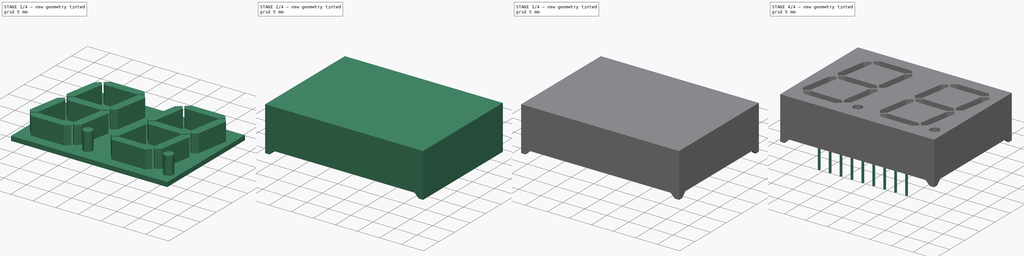
[diagram: build sequence overview — one tinted view per stage of 4, left to right]
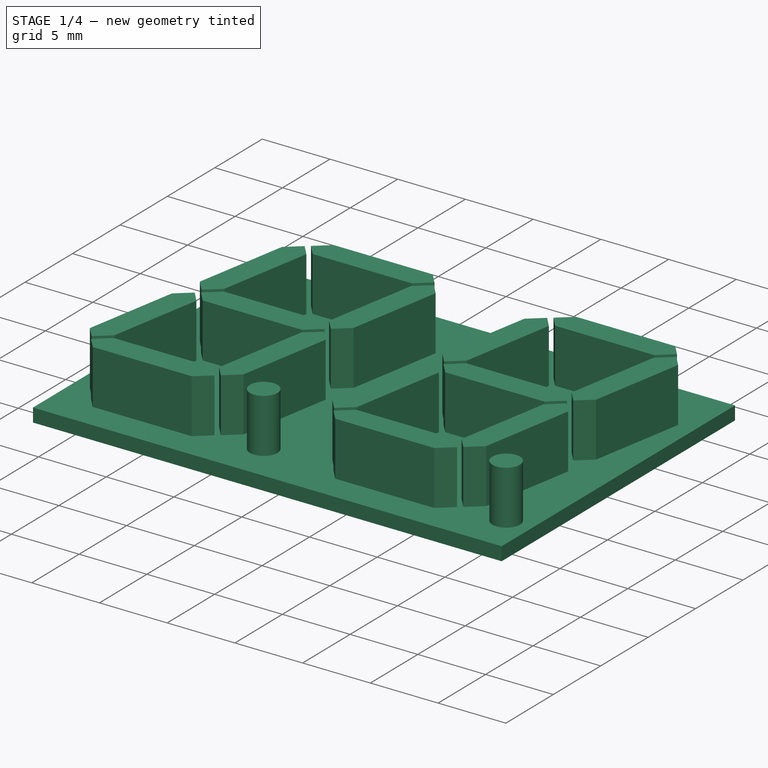
[diagram: stage 1 of 4 — iso view after this stage's code; geometry added in this stage tinted green]
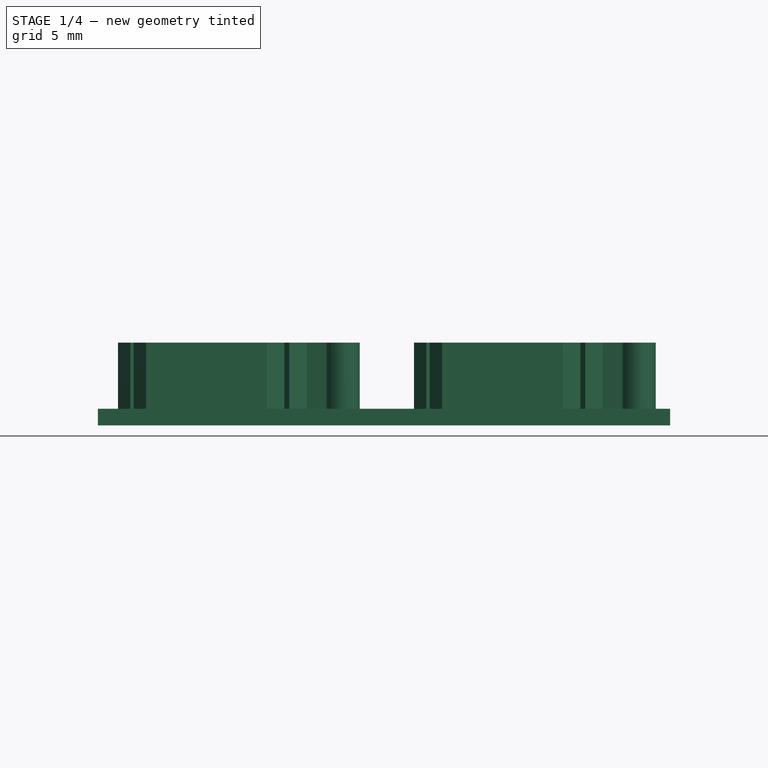
[diagram: stage 1 of 4 — front view after this stage's code; geometry added in this stage tinted green]
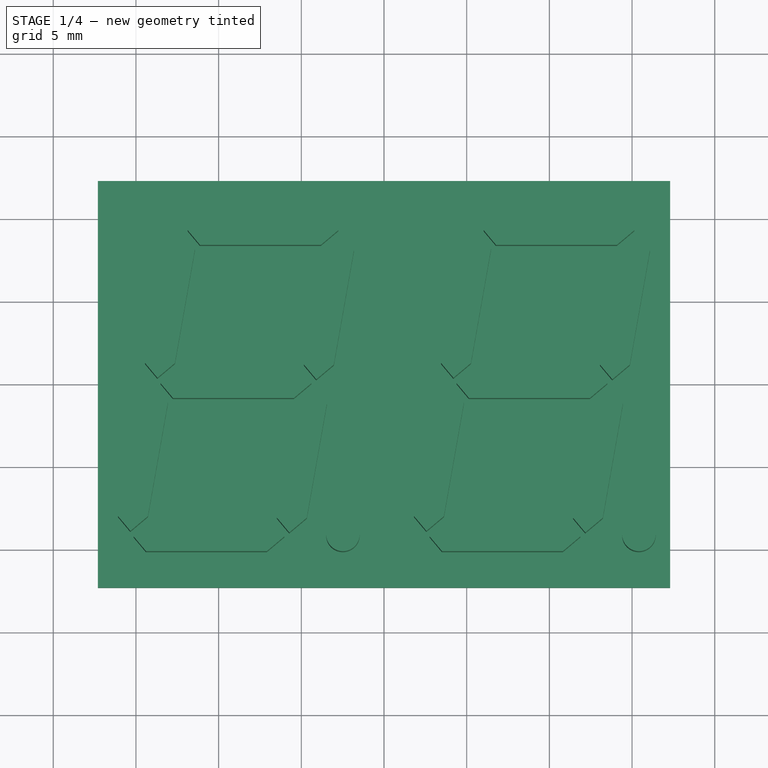
[diagram: stage 1 of 4 — top view after this stage's code; geometry added in this stage tinted green]
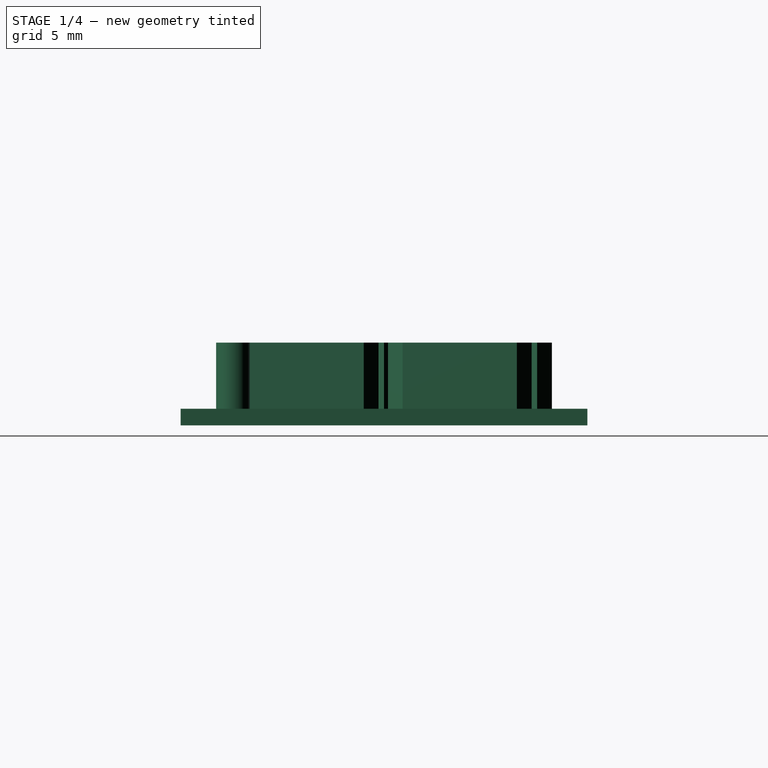
[diagram: stage 1 of 4 — right view after this stage's code; geometry added in this stage tinted green]
FCSTD DOCUMENT  (FreeCAD 1.0R38641 +468 (Git))
Label: LDD-A814RI
License: All rights reserved
LicenseURL: http://en.wikipedia.org/wiki/All_rights_reserved
objects: Sketcher::SketchObject×7, PartDesign::Pad×4, PartDesign::Body×3, PartDesign::Pocket×3, Part::FeaturePython×2, Spreadsheet::Sheet×1, PartDesign::LinearPattern×1, Part::Cut×1
note: 42 computed .brp shape members not serialized (recipe doc carries the construction recipe); baked Part::Feature solids carry a one-line shape summary decoded from their .brp

FEATURE [Sketcher::SketchObject] Sketch
  ArcFitTolerance = 0
  AttachmentSupport = -> [XY_Plane001]
  FullyConstrained = true
  MakeInternals = false
  MapMode = 5
  expr: Constraints[10] = <<Param>>.pkgw - <<Param>>.pkgedge * 2
  expr: Constraints[9] = <<Param>>.pkgl - <<Param>>.pkgedge * 2
  sketch-geometry (4):
    g0: LineSegment StartX=-17.3 StartY=12.3 StartZ=0 EndX=17.3 EndY=12.3 EndZ=0
    g1: LineSegment StartX=17.3 StartY=12.3 StartZ=0 EndX=17.3 EndY=-12.3 EndZ=0
    g2: LineSegment StartX=17.3 StartY=-12.3 StartZ=0 EndX=-17.3 EndY=-12.3 EndZ=0
    g3: LineSegment StartX=-17.3 StartY=-12.3 StartZ=0 EndX=-17.3 EndY=12.3 EndZ=0
  constraints (11):
    c: Coincident(g0,g1)
    c: Coincident(g1,g2)
    c: Coincident(g2,g3)
    c: Coincident(g3,g0)
    c: Horizontal(g0)
    c: Horizontal(g2)
    c: Vertical(g1)
    c: Vertical(g3)
    c: Symmetric(g2,g0,g-1)
    c: DistanceX(g0,g0) = 34.6
    c: DistanceY(g1,g1) = 24.6
FEATURE [PartDesign::Pad] Pad001
  Direction = (0,0,1)
  Length = 1
  Length2 = 10
  Profile = -> Sketch
  ReferenceAxis = -> Sketch [N_Axis]
  Suppressed = false
  Type = 0
FEATURE [Sketcher::SketchObject] Sketch002
  ArcFitTolerance = 0
  AttachmentSupport = -> [XY_Plane001]
  FullyConstrained = true
  MakeInternals = false
  MapMode = 5
  sketch-geometry (90):
    g0: LineSegment StartX=-11.8753 StartY=9.261 StartZ=0 EndX=-10.8159 EndY=10.15 EndZ=0
    g1: LineSegment StartX=-10.8159 StartY=10.15 StartZ=0 EndX=-3.50471 EndY=10.15 EndZ=0
    g2: LineSegment StartX=-3.50471 StartY=10.15 StartZ=0 EndX=-2.75875 EndY=9.261 EndZ=0
    g3: LineSegment StartX=-2.75875 StartY=9.261 StartZ=0 EndX=-3.81822 EndY=8.372 EndZ=0
    g4: LineSegment StartX=-3.81822 StartY=8.372 StartZ=0 EndX=-11.1294 EndY=8.372 EndZ=0
    g5: LineSegment StartX=-11.1294 StartY=8.372 StartZ=0 EndX=-11.8753 EndY=9.261 EndZ=0
    g6: LineSegment StartX=-12.1716 StartY=9.02134 StartZ=0 EndX=-11.4256 EndY=8.13234 EndZ=0
    g7: LineSegment StartX=-11.4256 StartY=8.13234 StartZ=0 EndX=-12.644 EndY=1.22258 EndZ=0
    g8: LineSegment StartX=-12.644 StartY=1.22258 StartZ=0 EndX=-13.7035 EndY=0.333585 EndZ=0
    g9: LineSegment StartX=-13.7035 StartY=0.333585 StartZ=0 EndX=-14.4494 EndY=1.22258 EndZ=0
    g10: LineSegment StartX=-14.4494 StartY=1.22258 StartZ=0 EndX=-13.231 EndY=8.13234 EndZ=0
    g11: LineSegment StartX=-13.231 StartY=8.13234 StartZ=0 EndX=-12.1716 EndY=9.02134 EndZ=0
    g12: LineSegment StartX=-2.56357 StartY=8.92742 StartZ=0 EndX=-3.62304 EndY=8.03842 EndZ=0
    g13: LineSegment StartX=-3.62304 StartY=8.03842 StartZ=0 EndX=-4.84141 EndY=1.12866 EndZ=0
    g14: LineSegment StartX=-4.84141 StartY=1.12866 StartZ=0 EndX=-4.09546 EndY=0.239663 EndZ=0
    g15: LineSegment StartX=-4.09546 StartY=0.239663 StartZ=0 EndX=-3.03599 EndY=1.12866 EndZ=0
    g16: LineSegment StartX=-3.03599 StartY=1.12866 StartZ=0 EndX=-1.81761 EndY=8.03842 EndZ=0
    g17: LineSegment StartX=-1.81761 StartY=8.03842 StartZ=0 EndX=-2.56357 EndY=8.92742 EndZ=0
    g18: LineSegment StartX=-12.4488 StartY=0.889 StartZ=0 EndX=-13.5083 EndY=-1e-16 EndZ=0
    g19: LineSegment StartX=-13.5083 StartY=0 StartZ=0 EndX=-12.7623 EndY=-0.889 EndZ=0
    g20: LineSegment StartX=-12.7623 StartY=-0.889 StartZ=0 EndX=-5.45118 EndY=-0.889 EndZ=0
    g21: LineSegment StartX=-5.45118 StartY=-0.889 StartZ=0 EndX=-4.39171 EndY=0 EndZ=0
    g22: LineSegment StartX=-4.39171 StartY=0 StartZ=0 EndX=-5.13767 EndY=0.889 EndZ=0
    g23: LineSegment StartX=-5.13767 StartY=0.889 StartZ=0 EndX=-12.4488 EndY=0.889 EndZ=0
    g24: LineSegment StartX=-13.8045 StartY=-0.239663 StartZ=0 EndX=-14.864 EndY=-1.12866 EndZ=0
    g25: LineSegment StartX=-14.864 StartY=-1.12866 StartZ=0 EndX=-16.0824 EndY=-8.03842 EndZ=0
    g26: LineSegment StartX=-16.0824 StartY=-8.03842 StartZ=0 EndX=-15.3364 EndY=-8.92742 EndZ=0
    g27: LineSegment StartX=-15.3364 StartY=-8.92742 StartZ=0 EndX=-14.277 EndY=-8.03842 EndZ=0
    g28: LineSegment StartX=-14.277 StartY=-8.03842 StartZ=0 EndX=-13.0586 EndY=-1.12866 EndZ=0
    g29: LineSegment StartX=-13.0586 StartY=-1.12866 StartZ=0 EndX=-13.8045 EndY=-0.239663 EndZ=0
    g30: LineSegment StartX=-4.19653 StartY=-0.333585 StartZ=0 EndX=-5.256 EndY=-1.22258 EndZ=0
    g31: LineSegment StartX=-5.256 StartY=-1.22258 StartZ=0 EndX=-6.47438 EndY=-8.13234 EndZ=0
    g32: LineSegment StartX=-6.47438 StartY=-8.13234 StartZ=0 EndX=-5.72842 EndY=-9.02134 EndZ=0
    g33: LineSegment StartX=-5.72842 StartY=-9.02134 StartZ=0 EndX=-4.66895 EndY=-8.13234 EndZ=0
    g34: LineSegment StartX=-4.66895 StartY=-8.13234 StartZ=0 EndX=-3.45057 EndY=-1.22258 EndZ=0
    g35: LineSegment StartX=-3.45057 StartY=-1.22258 StartZ=0 EndX=-4.19653 EndY=-0.333585 EndZ=0
    g36: LineSegment StartX=-15.1412 StartY=-9.261 StartZ=0 EndX=-14.0818 EndY=-8.372 EndZ=0
    g37: LineSegment StartX=-14.0818 StartY=-8.372 StartZ=0 EndX=-6.77064 EndY=-8.372 EndZ=0
    g38: LineSegment StartX=-6.77064 StartY=-8.372 StartZ=0 EndX=-6.02468 EndY=-9.261 EndZ=0
    g39: LineSegment StartX=-6.02468 StartY=-9.261 StartZ=0 EndX=-7.08415 EndY=-10.15 EndZ=0
    g40: LineSegment StartX=-7.08415 StartY=-10.15 StartZ=0 EndX=-14.3953 EndY=-10.15 EndZ=0
    g41: LineSegment StartX=-14.3953 StartY=-10.15 StartZ=0 EndX=-15.1412 EndY=-9.261 EndZ=0
    g42: LineSegment [constr] StartX=-3.57944 StartY=-10.15 StartZ=0 EndX=0 EndY=10.15 EndZ=0
    g43: LineSegment [constr] StartX=0 StartY=10.15 StartZ=0 EndX=0 EndY=0 EndZ=0
    g44: LineSegment [constr] StartX=0 StartY=0 StartZ=0 EndX=0 EndY=-10.15 EndZ=0
    g45: LineSegment [constr] StartX=-3.81822 StartY=8.372 StartZ=0 EndX=-3.81822 EndY=10.15 EndZ=0
    g46: LineSegment [constr] StartX=-5.45118 StartY=-0.889 StartZ=0 EndX=-5.45118 EndY=0.889 EndZ=0
    g47: LineSegment [constr] StartX=-7.08415 StartY=-10.15 StartZ=0 EndX=-7.08415 EndY=-8.372 EndZ=0
    g48: LineSegment [constr] StartX=-14.277 StartY=-8.03842 StartZ=0 EndX=-16.0279 EndY=-7.72967 EndZ=0
    g49: LineSegment [constr] StartX=-4.66895 StartY=-8.13234 StartZ=0 EndX=-6.41994 EndY=-7.82359 EndZ=0
    g50: LineSegment [constr] StartX=-12.644 StartY=1.22258 StartZ=0 EndX=-14.395 EndY=1.53133 EndZ=0
    g51: LineSegment [constr] StartX=-3.03599 StartY=1.12866 StartZ=0 EndX=-4.78697 EndY=1.43741 EndZ=0
    g52: LineSegment [constr] StartX=-3.50471 StartY=10.15 StartZ=0 EndX=0 EndY=10.15 EndZ=0
    g53: LineSegment [constr] StartX=-4.39171 StartY=0 StartZ=0 EndX=0 EndY=0 EndZ=0
    g54: LineSegment [constr] StartX=-7.08415 StartY=-10.15 StartZ=0 EndX=0 EndY=-10.15 EndZ=0
    g55: LineSegment [constr] StartX=-15.1412 StartY=-9.261 StartZ=0 EndX=-6.02468 EndY=-9.261 EndZ=0
    g56: LineSegment [constr] StartX=-13.5083 StartY=0 StartZ=0 EndX=-4.39171 EndY=0 EndZ=0
    g57: LineSegment [constr] StartX=-11.8753 StartY=9.261 StartZ=0 EndX=-2.75875 EndY=9.261 EndZ=0
    g58: LineSegment [constr] StartX=-13.231 StartY=8.13234 StartZ=0 EndX=-11.4256 EndY=8.13234 EndZ=0
    g59: LineSegment [constr] StartX=-14.4494 StartY=1.22258 StartZ=0 EndX=-12.644 EndY=1.22258 EndZ=0
    g60: LineSegment [constr] StartX=-3.62304 StartY=8.03842 StartZ=0 EndX=-1.81761 EndY=8.03842 EndZ=0
    g61: LineSegment [constr] StartX=-4.84141 StartY=1.12866 StartZ=0 EndX=-3.03599 EndY=1.12866 EndZ=0
    g62: LineSegment [constr] StartX=-14.864 StartY=-1.12866 StartZ=0 EndX=-13.0586 EndY=-1.12866 EndZ=0
    g63: LineSegment [constr] StartX=-16.0824 StartY=-8.03842 StartZ=0 EndX=-14.277 EndY=-8.03842 EndZ=0
    g64: LineSegment [constr] StartX=-5.256 StartY=-1.22258 StartZ=0 EndX=-3.45057 EndY=-1.22258 EndZ=0
    g65: LineSegment [constr] StartX=-6.47438 StartY=-8.13234 StartZ=0 EndX=-4.66895 EndY=-8.13234 EndZ=0
    g66: LineSegment [constr] StartX=-11.4256 StartY=8.13234 StartZ=0 EndX=-11.1338 EndY=8.37724 EndZ=0
    g67: LineSegment [constr] StartX=-3.62304 StartY=8.03842 StartZ=0 EndX=-3.86794 EndY=8.33028 EndZ=0
    g68: LineSegment [constr] StartX=-14.277 StartY=-8.03842 StartZ=0 EndX=-14.0321 EndY=-8.33028 EndZ=0
    g69: LineSegment [constr] StartX=-6.47438 StartY=-8.13234 StartZ=0 EndX=-6.76624 EndY=-8.37724 EndZ=0
    g70: LineSegment [constr] StartX=-13.0586 StartY=-1.12866 StartZ=0 EndX=-12.7667 EndY=-0.883761 EndZ=0
    g71: LineSegment [constr] StartX=-12.644 StartY=1.22258 StartZ=0 EndX=-12.3991 EndY=0.930722 EndZ=0
    g72: LineSegment [constr] StartX=-4.84141 StartY=1.12866 StartZ=0 EndX=-5.13328 EndY=0.883761 EndZ=0
    g73: LineSegment [constr] StartX=-5.256 StartY=-1.22258 StartZ=0 EndX=-5.50091 EndY=-0.930722 EndZ=0
    g74: LineSegment [constr] StartX=-15.3364 StartY=-8.92742 StartZ=0 EndX=-15.0824 EndY=-8.92742 EndZ=0
    g75: LineSegment [constr] StartX=-5.72842 StartY=-9.02134 StartZ=0 EndX=-5.98242 EndY=-9.02134 EndZ=0
    g76: LineSegment [constr] StartX=-14.277 StartY=-8.03842 StartZ=0 EndX=-14.023 EndY=-8.03842 EndZ=0
    g77: LineSegment [constr] StartX=-6.47438 StartY=-8.13234 StartZ=0 EndX=-6.72838 EndY=-8.13234 EndZ=0
    g78: Circle CenterX=-2.48472 CenterY=-9.134 CenterZ=0 NormalX=0 NormalY=0 NormalZ=1 AngleXU=0 Radius=1.016
    g79: LineSegment [constr] StartX=0 StartY=0 StartZ=0 EndX=4.39171 EndY=0 EndZ=0
    g80: LineSegment [constr] StartX=-12.1716 StartY=9.02134 StartZ=0 EndX=-15.3364 EndY=-8.92742 EndZ=0
    g81: LineSegment [constr] StartX=-11.8753 StartY=9.261 StartZ=0 EndX=-15.1412 EndY=-9.261 EndZ=0
    g82: LineSegment [constr] StartX=-10.8159 StartY=10.15 StartZ=0 EndX=-14.3953 EndY=-10.15 EndZ=0
    g83: LineSegment [constr] StartX=-2.56357 StartY=8.92742 StartZ=0 EndX=-5.72842 EndY=-9.02134 EndZ=0
    g84: LineSegment [constr] StartX=-2.75875 StartY=9.261 StartZ=0 EndX=-6.02468 EndY=-9.261 EndZ=0
    g85: LineSegment [constr] StartX=-3.50471 StartY=10.15 StartZ=0 EndX=-7.08415 EndY=-10.15 EndZ=0
    g86: LineSegment [constr] StartX=-4.66895 StartY=-8.13234 StartZ=0 EndX=-5.02472 EndY=-10.15 EndZ=0
    g87: LineSegment [constr] StartX=-16.0824 StartY=-8.03842 StartZ=0 EndX=-16.4547 EndY=-10.15 EndZ=0
    g88: LineSegment [constr] StartX=-14.3953 StartY=-10.15 StartZ=0 EndX=-16.4547 EndY=-10.15 EndZ=0
    g89: LineSegment [constr] StartX=-17.9 StartY=0 StartZ=0 EndX=-13.5083 EndY=0 EndZ=0
  constraints (242):
    c: Coincident(g0,g1)
    c: Horizontal(g1)
    c: Coincident(g1,g2)
    c: Coincident(g2,g3)
    c: Coincident(g3,g4)
    c: Horizontal(g4)
    c: Coincident(g4,g5)
    c: Coincident(g5,g0)
    c: Coincident(g6,g7)
    c: Coincident(g7,g8)
    c: Coincident(g8,g9)
    c: Coincident(g9,g10)
    c: Coincident(g10,g11)
    c: Coincident(g11,g6)
    c: Coincident(g12,g13)
    c: Coincident(g13,g14)
    c: Coincident(g14,g15)
    c: Coincident(g15,g16)
    c: Coincident(g16,g17)
    c: Coincident(g17,g12)
    c: Coincident(g18,g19)
    c: Coincident(g19,g20)
    c: Horizontal(g20)
    c: Coincident(g20,g21)
    c: Coincident(g21,g22)
    c: Coincident(g22,g23)
    c: Coincident(g23,g18)
    c: Horizontal(g23)
    c: Coincident(g24,g25)
    c: Coincident(g25,g26)
    c: Coincident(g26,g27)
    c: Coincident(g27,g28)
    c: Coincident(g28,g29)
    c: Coincident(g29,g24)
    c: Coincident(g30,g31)
    c: Coincident(g31,g32)
    c: Coincident(g32,g33)
    c: Coincident(g33,g34)
    c: Coincident(g34,g35)
    c: Coincident(g35,g30)
    c: Coincident(g36,g37)
    c: Horizontal(g37)
    c: Coincident(g37,g38)
    c: Coincident(g38,g39)
    c: Coincident(g39,g40)
    c: Horizontal(g40)
    c: Coincident(g40,g41)
    c: Coincident(g41,g36)
    c: Vertical(g43)
    c: Coincident(g44,g43)
    c: Vertical(g44)
    c: Equal(g44,g43)
    c: Coincident(g42,g43)
    c: Coincident(g45,g3)
    c: PointOnObject(g45,g1)
    c: Vertical(g45)
    c: Coincident(g46,g20)
    c: PointOnObject(g46,g23)
    c: Vertical(g46)
    c: Coincident(g47,g39)
    c: PointOnObject(g47,g37)
    c: Vertical(g47)
    c: Coincident(g48,g27)
    c: PointOnObject(g48,g25)
    c: Perpendicular(g48,g28)
    c: Coincident(g49,g33)
    c: PointOnObject(g49,g31)
    c: Perpendicular(g49,g34)
    c: Coincident(g50,g7)
    c: PointOnObject(g50,g10)
    c: Perpendicular(g50,g7)
    c: Coincident(g51,g15)
    c: PointOnObject(g51,g13)
    c: Perpendicular(g51,g16)
    c: Equal(g45,g50)
    c: Equal(g50,g51)
    c: Equal(g51,g46)
    c: Equal(g46,g49)
    c: Equal(g49,g47)
    c: Equal(g47,g48)
    c: DistanceY(g45) = 1.778
    c: Coincident(g52,g1)
    c: Coincident(g52,g42)
    c: Horizontal(g52)
    c: Coincident(g53,g21)
    c: Coincident(g53,g43)
    c: Coincident(g54,g39)
    c: Horizontal(g54)
    c: Coincident(g55,g36)
    c: Coincident(g55,g38)
    c: Coincident(g56,g18)
    c: Coincident(g56,g21)
    c: Symmetric(g46,g20,g56)
    c: Symmetric(g39,g47,g55)
    c: Coincident(g57,g0)
    c: Coincident(g57,g2)
    c: Symmetric(g3,g45,g57)
    c: Coincident(g58,g10)
    c: Horizontal(g58)
    c: Coincident(g6,g58)
    c: Coincident(g59,g9)
    c: Coincident(g59,g7)
    c: Horizontal(g59)
    c: Coincident(g60,g12)
    c: Coincident(g60,g16)
    c: Horizontal(g60)
    c: Coincident(g61,g13)
    c: Coincident(g61,g15)
    c: Horizontal(g61)
    c: Parallel(g6,g5)
    c: Parallel(g3,g12)
    c: Coincident(g62,g24)
    c: Horizontal(g62)
    c: Coincident(g28,g62)
    c: Coincident(g63,g25)
    c: Coincident(g27,g63)
    c: Horizontal(g63)
    c: Coincident(g64,g30)
    c: Coincident(g64,g34)
    c: Horizontal(g64)
    c: Coincident(g65,g31)
    c: Coincident(g65,g33)
    c: Horizontal(g65)
    c: Parallel(g8,g18)
    c: Parallel(g22,g14)
    c: Parallel(g29,g19)
    c: Parallel(g21,g30)
    c: Parallel(g27,g36)
    c: Parallel(g38,g32)
    c: Coincident(g66,g6)
    c: PointOnObject(g66,g5)
    c: Perpendicular(g66,g6)
    c: Distance(g66) = 0.381
    c: Coincident(g67,g12)
    c: PointOnObject(g67,g3)
    c: Perpendicular(g12,g67)
    c: Equal(g67,g66)
    c: Coincident(g68,g27)
    c: PointOnObject(g68,g36)
    c: Perpendicular(g68,g27)
    c: Equal(g68,g66)
    c: Coincident(g69,g31)
    c: PointOnObject(g69,g38)
    c: Perpendicular(g69,g32)
    c: Equal(g69,g66)
    c: Coincident(g70,g28)
    c: PointOnObject(g70,g19)
    c: Coincident(g71,g7)
    c: PointOnObject(g71,g18)
    c: Perpendicular(g71,g8)
    c: Perpendicular(g29,g70)
    c: Equal(g70,g71)
    c: Equal(g71,g66)
    c: Coincident(g72,g13)
    c: PointOnObject(g72,g22)
    c: Coincident(g73,g30)
    c: PointOnObject(g73,g21)
    c: Perpendicular(g73,g30)
    c: Perpendicular(g72,g14)
    c: Equal(g72,g73)
    c: Equal(g73,g66)
    c: Coincident(g74,g26)
    c: Horizontal(g74)
    c: Coincident(g75,g32)
    c: Horizontal(g75)
    c: Equal(g75,g74)
    c: Coincident(g76,g27)
    c: Horizontal(g76)
    c: Equal(g74,g76)
    c: Coincident(g77,g31)
    c: Horizontal(g77)
    c: Equal(g77,g74)
    c: Radius(g78) = 1.016
    c: Tangent(g78,g54)
    c: Coincident(g79,g43)
    c: Horizontal(g79)
    c: Equal(g53,g79)
    c: DistanceX(g74) = 0.254
    c: PointOnObject(g42,g54)
    c: Coincident(g54,g44)
    c: Angle(g42,g43) = 0.174533
    c: Parallel(g80,g42)
    c: Parallel(g81,g42)
    c: Parallel(g82,g42)
    c: Coincident(g80,g6)
    c: Symmetric(g50,g7,g80)
    c: PointOnObject(g8,g80)
    c: PointOnObject(g24,g80)
    c: Symmetric(g48,g27,g80)
    c: Coincident(g26,g80)
    c: Coincident(g36,g81)
    c: PointOnObject(g74,g81)
    c: PointOnObject(g18,g81)
    c: Coincident(g0,g81)
    c: Coincident(g0,g82)
    c: PointOnObject(g4,g82)
    c: PointOnObject(g18,g82)
    c: PointOnObject(g19,g82)
    c: PointOnObject(g76,g82)
    c: PointOnObject(g36,g82)
    c: Coincident(g82,g40)
    c: Horizontal(g53)
    c: Parallel(g85,g42)
    c: Parallel(g84,g42)
    c: Parallel(g83,g42)
    c: Coincident(g1,g85)
    c: Coincident(g12,g83)
    c: Coincident(g84,g2)
    c: PointOnObject(g3,g85)
    c: PointOnObject(g14,g83)
    c: Symmetric(g51,g15,g83)
    c: PointOnObject(g30,g83)
    c: PointOnObject(g22,g85)
    c: PointOnObject(g20,g85)
    c: PointOnObject(g77,g85)
    c: PointOnObject(g37,g85)
    c: Coincident(g39,g85)
    c: Coincident(g38,g84)
    c: PointOnObject(g75,g84)
    c: Coincident(g32,g83)
    c: Symmetric(g49,g33,g83)
    c: PointOnObject(g21,g84)
    c: Parallel(g13,g42)
    c: Parallel(g10,g42)
    c: Parallel(g31,g42)
    c: Parallel(g25,g42)
    c: Coincident(g86,g33)
    c: PointOnObject(g86,g54)
    c: Parallel(g86,g42)
    c: Coincident(g87,g25)
    c: Parallel(g87,g42)
    c: DistanceX(g87,g86) = 11.43
    c: DistanceX(g87,g78) = 13.97
    c: Horizontal(g88)
    c: Coincident(g88,g40)
    c: Coincident(g88,g87)
    c: Horizontal(g89)
    c: Coincident(g89,g18)
    c: Equal(g89,g79)
    c: Coincident(g43,g-1)
    c: DistanceY(g44,g42) = 20.3
    c: DistanceX(g18,g79) = 17.9
FEATURE [PartDesign::Pad] Pad002
  BaseFeature = -> Pad001
  Direction = (0,0,1)
  Length = 5
  Length2 = 10
  Profile = -> Sketch002
  ReferenceAxis = -> Sketch002 [N_Axis]
  Suppressed = false
  Type = 0
  expr: Length = <<Param>>.pkgh / 2
FEATURE [PartDesign::LinearPattern] LinearPattern
  BaseFeature = -> Pad002
  Direction = -> Sketch002 [H_Axis]
  Length = 17.9
  Mode = 0
  Occurrences = 2
  Offset = 17.9
  Originals = -> [Pad002]
  Refine = true
  Suppressed = false
  TransformMode = 0
  expr: Length = <<Param>>.pkgl / 2
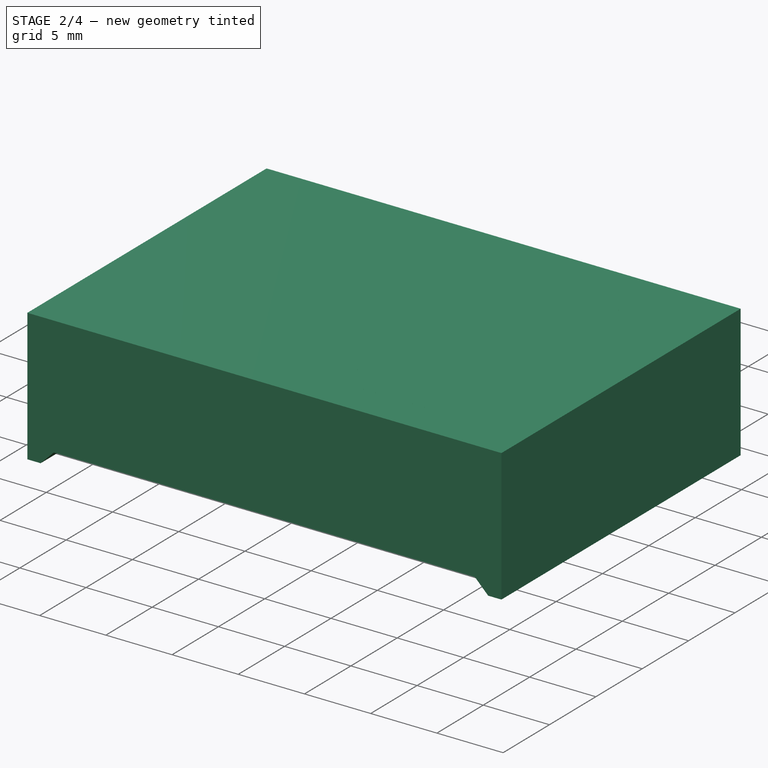
[diagram: stage 2 of 4 — iso view after this stage's code; geometry added in this stage tinted green]
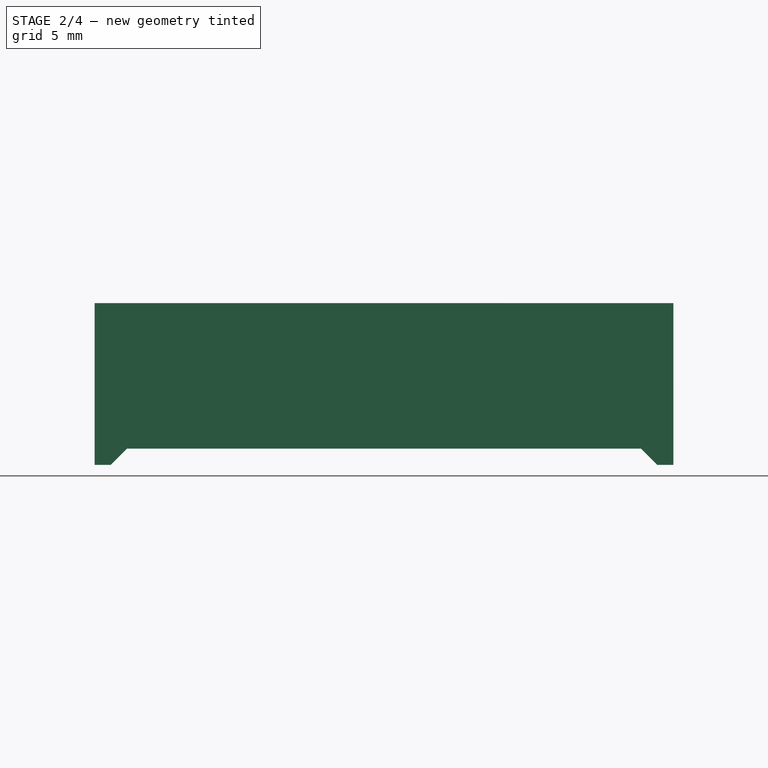
[diagram: stage 2 of 4 — front view after this stage's code; geometry added in this stage tinted green]
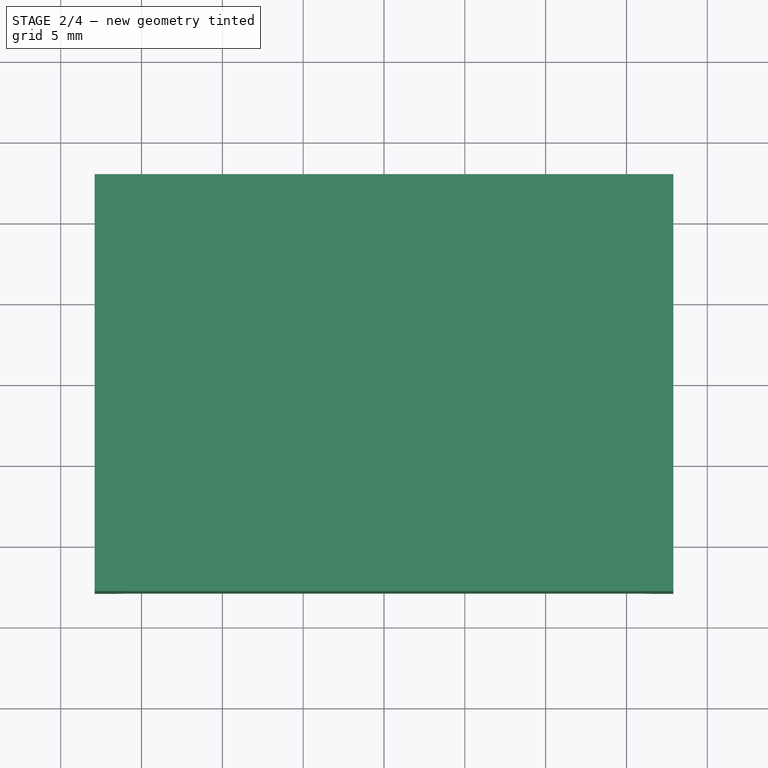
[diagram: stage 2 of 4 — top view after this stage's code; geometry added in this stage tinted green]
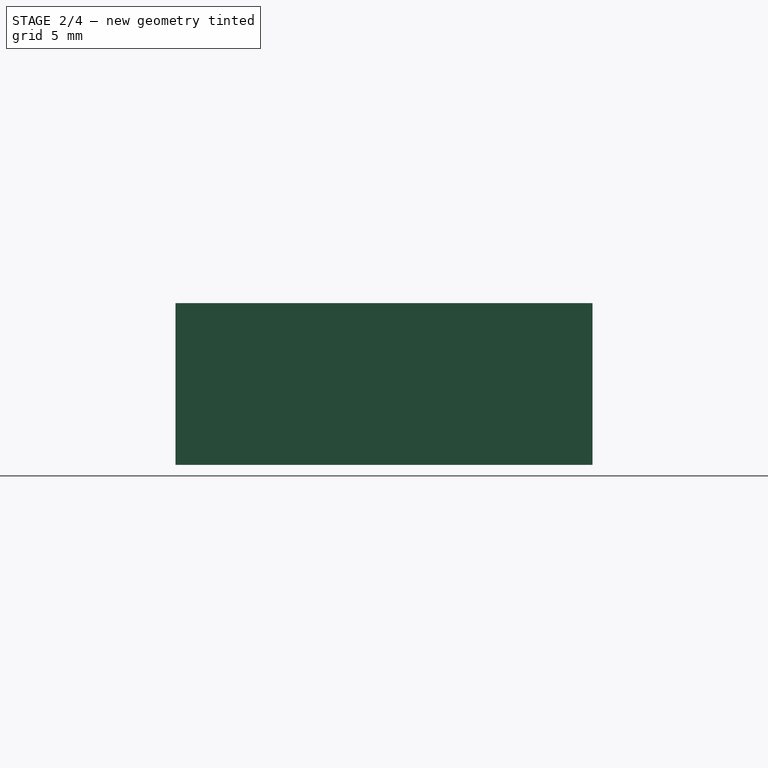
[diagram: stage 2 of 4 — right view after this stage's code; geometry added in this stage tinted green]
FEATURE [PartDesign::Body] Body001  label="Digit"
  AllowCompound = false
  Group = -> [Sketch,Pad001,Sketch002,Pad002,LinearPattern]
  Origin = -> Origin001
  Placement = pos=(0,0,5) rot=(0,0,1;0rad)
  Tip = -> LinearPattern
  expr: .Placement.Base.z = <<Param>>.pkgh / 2
FEATURE [Sketcher::SketchObject] Sketch003
  ArcFitTolerance = 0
  AttachmentSupport = -> [XY_Plane002]
  FullyConstrained = true
  MakeInternals = false
  MapMode = 5
  expr: Constraints[10] = <<Param>>.pkgw
  expr: Constraints[9] = <<Param>>.pkgl
  sketch-geometry (4):
    g0: LineSegment StartX=-17.9 StartY=-12.9 StartZ=0 EndX=17.9 EndY=-12.9 EndZ=0
    g1: LineSegment StartX=17.9 StartY=-12.9 StartZ=0 EndX=17.9 EndY=12.9 EndZ=0
    g2: LineSegment StartX=17.9 StartY=12.9 StartZ=0 EndX=-17.9 EndY=12.9 EndZ=0
    g3: LineSegment StartX=-17.9 StartY=12.9 StartZ=0 EndX=-17.9 EndY=-12.9 EndZ=0
  constraints (11):
    c: Coincident(g0,g1)
    c: Coincident(g1,g2)
    c: Coincident(g2,g3)
    c: Coincident(g3,g0)
    c: Horizontal(g0)
    c: Horizontal(g2)
    c: Vertical(g1)
    c: Vertical(g3)
    c: Symmetric(g1,g0,g-1)
    c: DistanceX(g2,g2) = 35.8
    c: DistanceY(g1,g1) = 25.8
FEATURE [PartDesign::Pad] Pad003
  Direction = (0,0,1)
  Length = 10
  Length2 = 10
  Profile = -> Sketch003
  ReferenceAxis = -> Sketch003 [N_Axis]
  Suppressed = false
  Type = 0
  expr: Length = <<Param>>.pkgh
FEATURE [Sketcher::SketchObject] Sketch004
  ArcFitTolerance = 0
  AttachmentSupport = -> [XZ_Plane002]
  FullyConstrained = true
  MakeInternals = false
  MapMode = 5
  Placement = pos=(0,0,0) rot=(1,0,0;1.5708rad)
  expr: Constraints[8] = <<Param>>.pkgl - <<Param>>.footedge * 2
  expr: Constraints[9] = <<Param>>.footh
  sketch-geometry (4):
    g0: LineSegment StartX=-16.9 StartY=0 StartZ=0 EndX=-15.9 EndY=1 EndZ=0
    g1: LineSegment StartX=-15.9 StartY=1 StartZ=0 EndX=15.9 EndY=1 EndZ=0
    g2: LineSegment StartX=15.9 StartY=1 StartZ=0 EndX=16.9 EndY=0 EndZ=0
    g3: LineSegment StartX=16.9 StartY=0 StartZ=0 EndX=-16.9 EndY=0 EndZ=0
  constraints (10):
    c: Coincident(g0,g1)
    c: Coincident(g1,g2)
    c: Coincident(g2,g3)
    c: Coincident(g3,g0)
    c: PointOnObject(g-1,g3)
    c: Symmetric(g2,g0,g-2)
    c: Symmetric(g0,g1,g-2)
    c: Angle(g3,g0) = 0.785398
    c: DistanceX(g3,g3) = 33.8
    c: DistanceY(g2,g1) = 1
FEATURE [PartDesign::Pocket] Pocket
  BaseFeature = -> Pad003
  Direction = (0,1,-2e-16)
  Length = 5
  Length2 = 5
  Midplane = true
  Profile = -> Sketch004
  ReferenceAxis = -> Sketch004 [N_Axis]
  Suppressed = false
  Type = 1
FEATURE [PartDesign::Body] Body002
  AllowCompound = false
  Group = -> [Sketch003,Pad003,Sketch004,Pocket,Sketch005,Pocket001,Sketch006,Pocket002]
  Origin = -> Origin002
  Tip = -> Pocket002
FEATURE [Part::FeaturePython] Clone  label="Digit001"  # Draft clone (typed FeaturePython)
  AttacherType = Attacher::AttachEngine3D
  Fuse = false
  Objects = -> [Body001]
  Placement = pos=(0,0,5) rot=(0,0,1;0rad)
  Scale = (1,1,1)
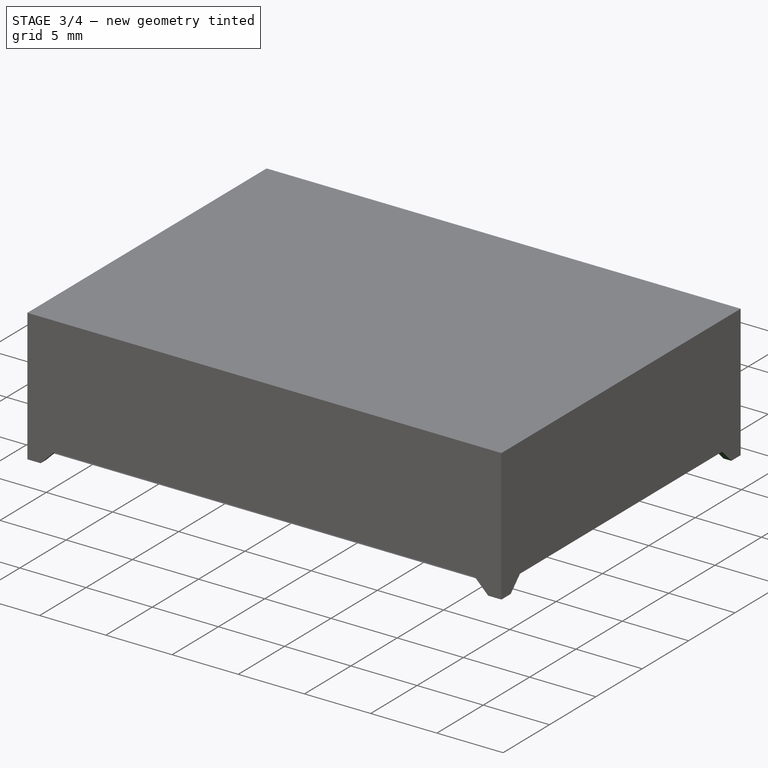
[diagram: stage 3 of 4 — iso view after this stage's code; geometry added in this stage tinted green]
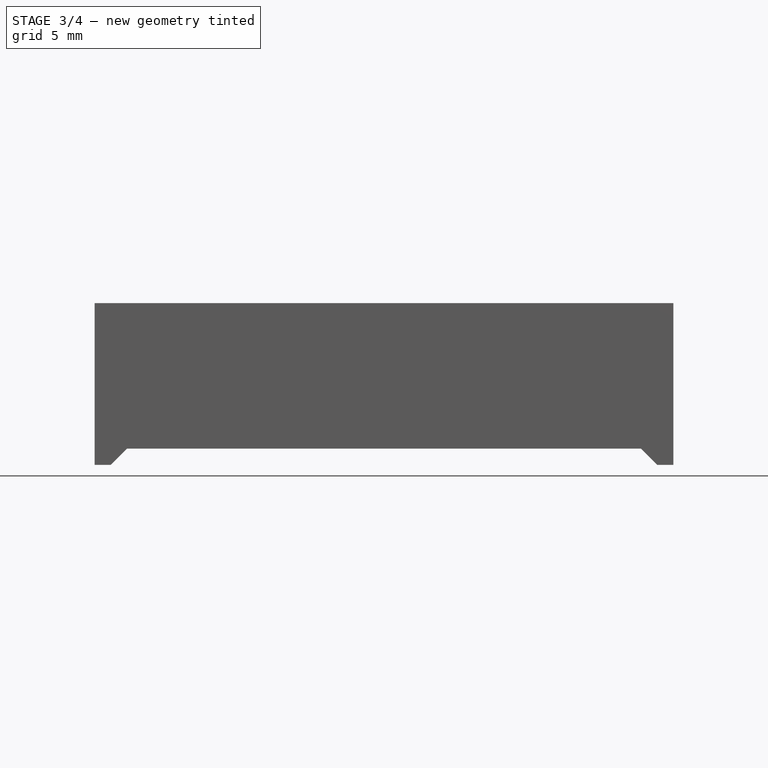
[diagram: stage 3 of 4 — front view after this stage's code; geometry added in this stage tinted green]
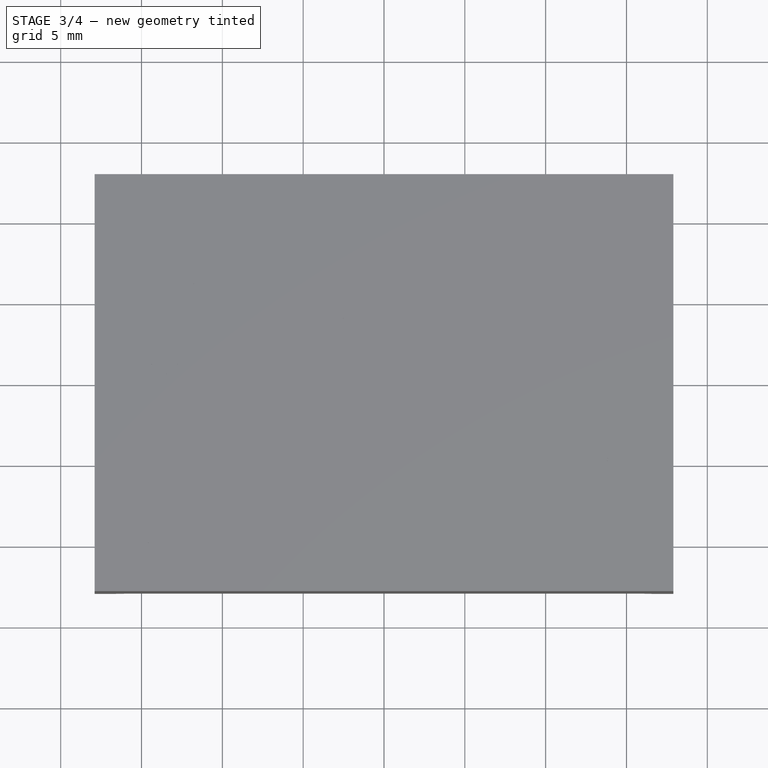
[diagram: stage 3 of 4 — top view after this stage's code; geometry added in this stage tinted green]
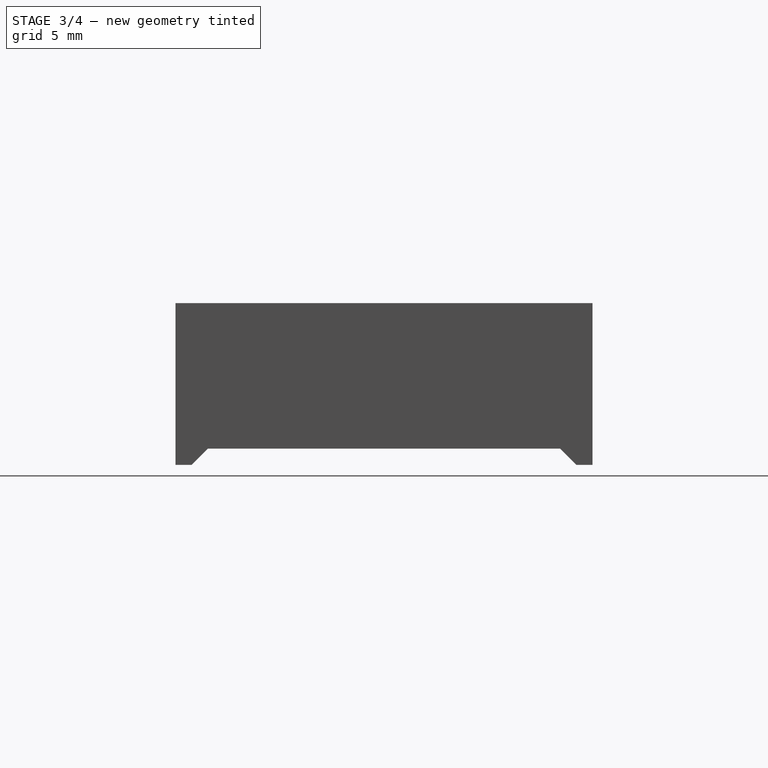
[diagram: stage 3 of 4 — right view after this stage's code; geometry added in this stage tinted green]
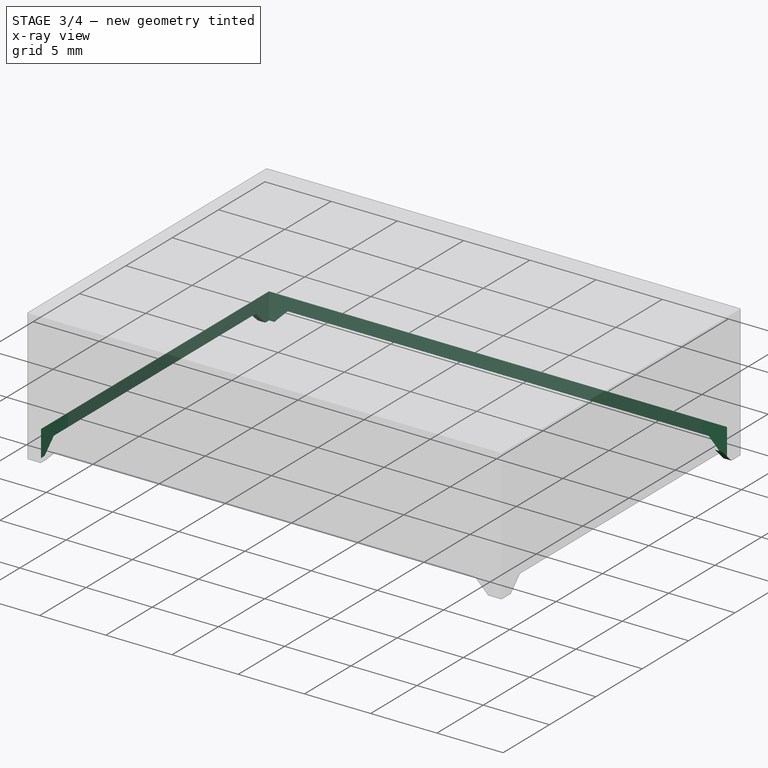
[diagram: stage 3 of 4 — x-ray composite at the iso view; earlier geometry ghosted, this stage's added geometry solid]
FEATURE [Sketcher::SketchObject] Sketch005
  ArcFitTolerance = 0
  AttachmentSupport = -> [YZ_Plane002]
  FullyConstrained = true
  MakeInternals = false
  MapMode = 5
  Placement = pos=(0,0,0) rot=(0.57735,0.57735,0.57735;2.0944rad)
  expr: Constraints[8] = <<Param>>.pkgw - <<Param>>.footedge * 2
  expr: Constraints[9] = <<Param>>.footh
  sketch-geometry (4):
    g0: LineSegment StartX=-11.9 StartY=0 StartZ=0 EndX=11.9 EndY=0 EndZ=0
    g1: LineSegment StartX=11.9 StartY=0 StartZ=0 EndX=10.9 EndY=1 EndZ=0
    g2: LineSegment StartX=10.9 StartY=1 StartZ=0 EndX=-10.9 EndY=1 EndZ=0
    g3: LineSegment StartX=-10.9 StartY=1 StartZ=0 EndX=-11.9 EndY=0 EndZ=0
  constraints (10):
    c: Coincident(g0,g1)
    c: Coincident(g1,g2)
    c: Coincident(g2,g3)
    c: Coincident(g3,g0)
    c: Symmetric(g1,g2,g-2)
    c: Symmetric(g0,g0,g-2)
    c: Angle(g0,g3) = 0.785398
    c: PointOnObject(g-1,g0)
    c: DistanceX(g0,g0) = 23.8
    c: DistanceY(g0,g1) = 1
FEATURE [PartDesign::Pocket] Pocket001
  BaseFeature = -> Pocket
  Direction = (-1,0,0)
  Length = 5
  Length2 = 5
  Midplane = true
  Profile = -> Sketch005
  ReferenceAxis = -> Sketch005 [N_Axis]
  Suppressed = false
  Type = 1
FEATURE [Sketcher::SketchObject] Sketch006
  ArcFitTolerance = 0
  AttachmentSupport = -> [XY_Plane002]
  FullyConstrained = true
  MakeInternals = false
  MapMode = 5
  expr: Constraints[10] = <<Param>>.pkgw - <<Param>>.pkgedge * 2
  expr: Constraints[9] = <<Param>>.pkgl - <<Param>>.pkgedge * 2
  sketch-geometry (4):
    g0: LineSegment StartX=-17.3 StartY=-12.3 StartZ=0 EndX=17.3 EndY=-12.3 EndZ=0
    g1: LineSegment StartX=17.3 StartY=-12.3 StartZ=0 EndX=17.3 EndY=12.3 EndZ=0
    g2: LineSegment StartX=17.3 StartY=12.3 StartZ=0 EndX=-17.3 EndY=12.3 EndZ=0
    g3: LineSegment StartX=-17.3 StartY=12.3 StartZ=0 EndX=-17.3 EndY=-12.3 EndZ=0
  constraints (11):
    c: Coincident(g0,g1)
    c: Coincident(g1,g2)
    c: Coincident(g2,g3)
    c: Coincident(g3,g0)
    c: Horizontal(g0)
    c: Horizontal(g2)
    c: Vertical(g1)
    c: Vertical(g3)
    c: Symmetric(g1,g0,g-1)
    c: DistanceX(g2,g2) = 34.6
    c: DistanceY(g1,g1) = 24.6
FEATURE [PartDesign::Pocket] Pocket002
  BaseFeature = -> Pocket001
  Direction = (0,0,-1)
  Length = 2
  Length2 = 5
  Profile = -> Sketch006
  ReferenceAxis = -> Sketch006 [N_Axis]
  Reversed = true
  Suppressed = false
  Type = 0
  expr: Length = <<Param>>.ppdepth
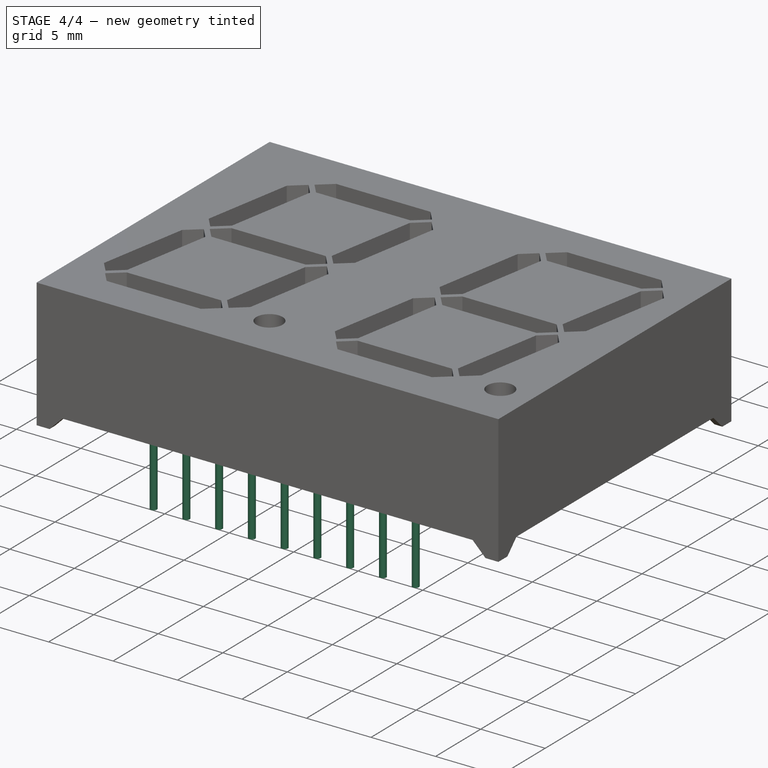
[diagram: stage 4 of 4 — iso view after this stage's code; geometry added in this stage tinted green]
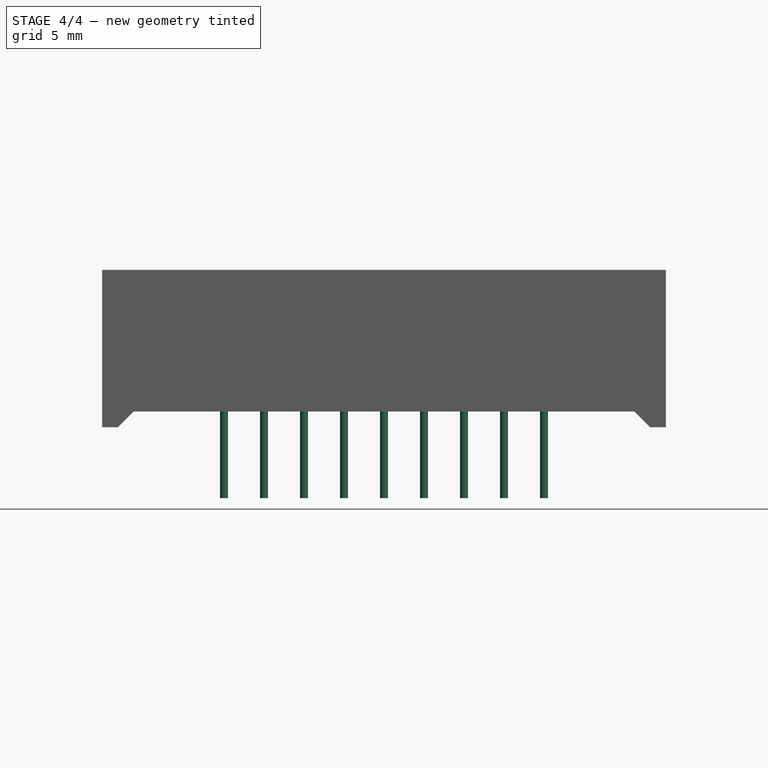
[diagram: stage 4 of 4 — front view after this stage's code; geometry added in this stage tinted green]
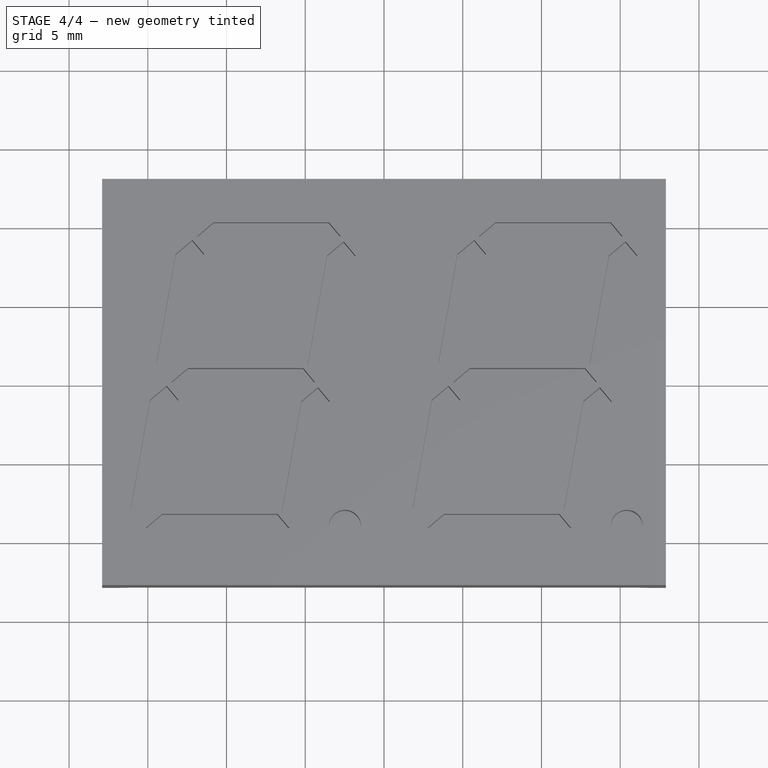
[diagram: stage 4 of 4 — top view after this stage's code; geometry added in this stage tinted green]
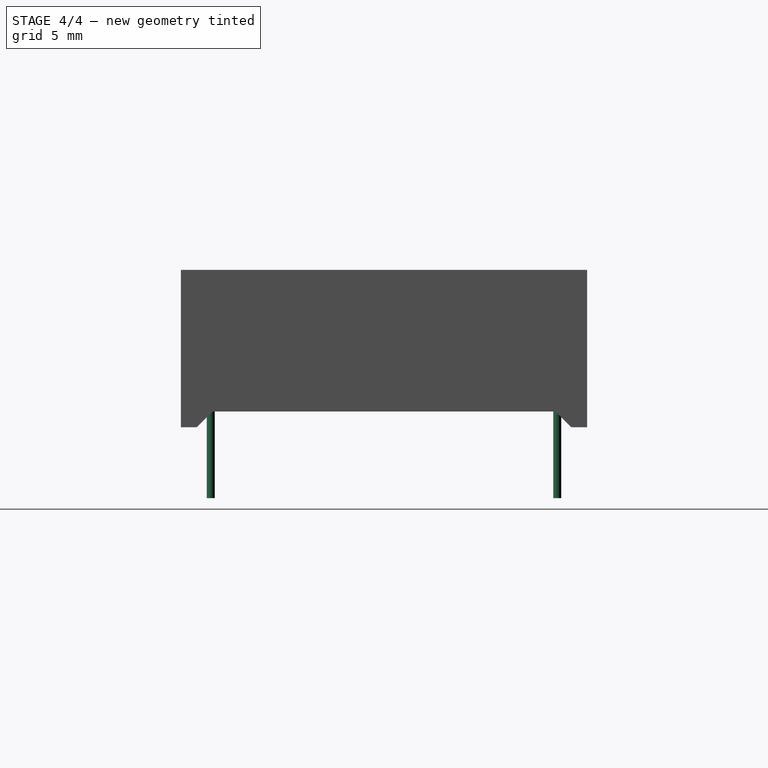
[diagram: stage 4 of 4 — right view after this stage's code; geometry added in this stage tinted green]
FEATURE [Spreadsheet::Sheet] Spreadsheet  label="Param"
  cells = A1='Pin; B2='Diameter; C2(pindia)==0.508 mm; B3='Length; C3(pinlen)==4.5 mm; B4='Row Spacing; C4(pinrow)==22 mm; B5='Pitch; C5(pinpitch)==2.54 mm; B6='Pins per row; C6(pinsperrow)=9; A8='Pkg; B9='Length; C9(pkgl)==35.8 mm; B10='Width; C10(pkgw)==25.8 mm; B11='Height; C11(pkgh)==10 mm; B12='Pin Pocket Depth; C12(ppdepth)==2 mm; B13='Edge Thickness; C13(pkgedge)==0.6 mm; B14='Foot Height; C14(footh)==1 mm; B15='Foot Edge; C15(footedge)==1 mm; A17='Digit; B18='Height; C18==20.3 mm; B19='Tilt; C19==10 deg
FEATURE [Sketcher::SketchObject] Sketch001
  ArcFitTolerance = 0
  AttachmentSupport = -> [XY_Plane]
  FullyConstrained = true
  MakeInternals = false
  MapMode = 5
  expr: Constraints[1] = <<Param>>.pindia
  sketch-geometry (1):
    g0: Circle CenterX=0 CenterY=0 CenterZ=0 NormalX=0 NormalY=0 NormalZ=1 AngleXU=0 Radius=0.254
  constraints (2):
    c: Coincident(g0,g-1)
    c: Diameter(g0) = 0.508
FEATURE [PartDesign::Pad] Pad
  Direction = (0,0,1)
  Length = 2
  Length2 = 4.5
  Profile = -> Sketch001
  ReferenceAxis = -> Sketch001 [N_Axis]
  Suppressed = false
  Type = 4
  expr: Length = <<Param>>.ppdepth
  expr: Length2 = <<Param>>.pinlen
FEATURE [PartDesign::Body] Body
  AllowCompound = false
  Group = -> [Sketch001,Pad]
  Origin = -> Origin
  Tip = -> Pad
FEATURE [Part::FeaturePython] Array  label="Pin"  # Draft array (typed FeaturePython)
  AlwaysSyncPlacement = false
  Angle = 360
  ArrayType = 0
  Axis = (0,0,1)
  Base = -> Body
  Center = (0,0,0)
  Count = 18
  ExpandArray = false
  Fuse = false
  IntervalAxis = (0,0,0)
  IntervalX = (2.54,0,0)
  IntervalY = (0,22,0)
  IntervalZ = (0,0,100)
  NumberCircles = 3
  NumberPolar = 5
  NumberX = 9
  NumberY = 2
  NumberZ = 1
  Placement = pos=(-10.16,-11,0) rot=(0,0,1;0rad)
  PlacementList = 18 placements: [(0,0,0),(0,22,0),(2.54,0,0),(2.54,22,0),(5.08,0,0),(5.08,22,0),(7.62,0,0),(7.62,22,0),(10.16,0,0),(10.16,22,0),(12.7,0,0),(12.7,22,0),(15.24,0,0),(15.24,22,0),(17.78,0,0),(17.78,22,0),(20.32,0,0),(20.32,22,0)]
  RadialDistance = 50
  ScaleList = (18) [(1,1,1),(1,1,1),(1,1,1),(1,1,1),(1,1,1),(1,1,1),(1,1,1),(1,1,1),(1,1,1),(1,1,1),(1,1,1),(1,1,1),(1,1,1),(1,1,1),(1,1,1),(1,1,1),(1,1,1),(1,1,1)]
  Symmetry = 1
  TangentialDistance = 25
  expr: .IntervalX.x = <<Param>>.pinpitch
  expr: .IntervalY.y = <<Param>>.pinrow
  expr: .Placement.Base.x = -<<Param>>.pinpitch * (<<Param>>.pinsperrow - 1) / 2
  expr: .Placement.Base.y = -<<Param>>.pinrow / 2
FEATURE [Part::Cut] Cut  label="Pkg"
  Base = -> Body002
  Tool = -> Clone
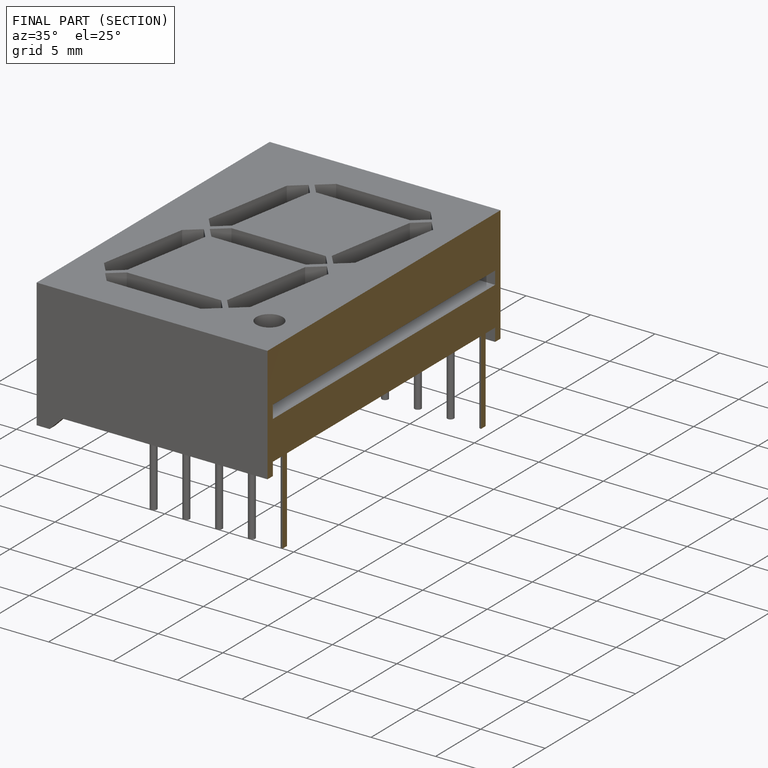
[diagram: finished part — half-section view (interior)]
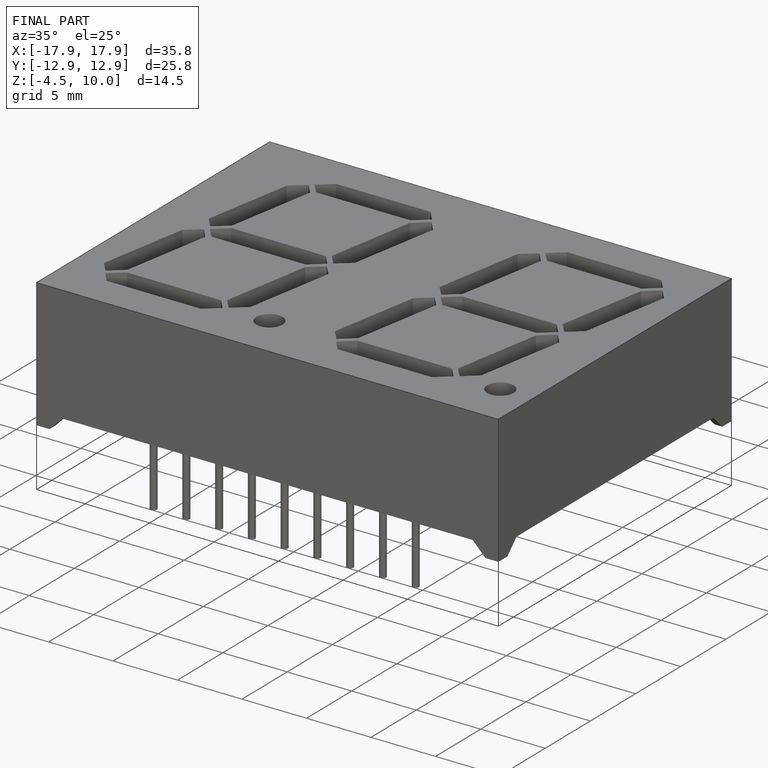
[diagram: finished part — iso view with bounding-box wireframe]
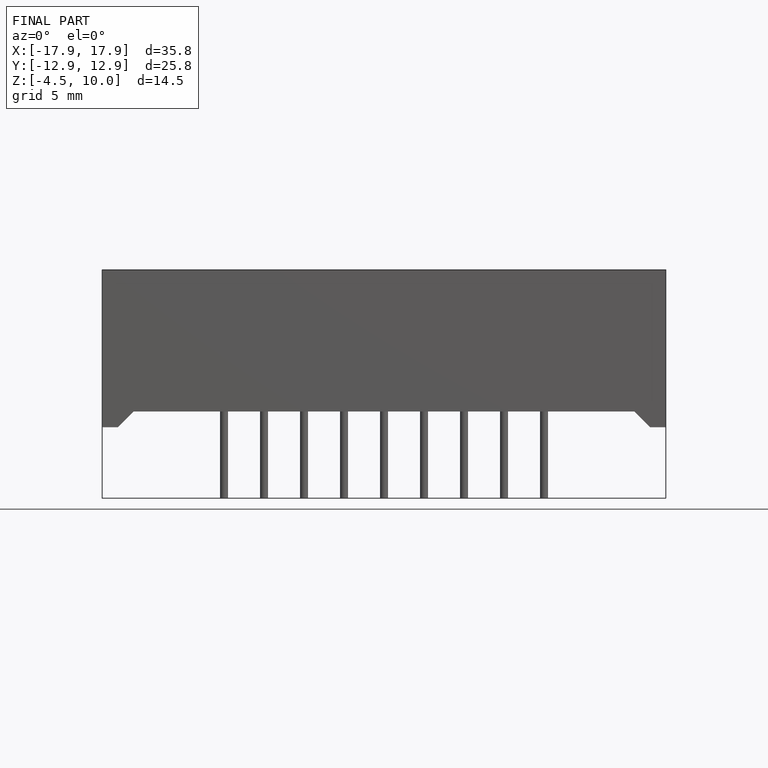
[diagram: finished part — front view with bounding-box wireframe]
